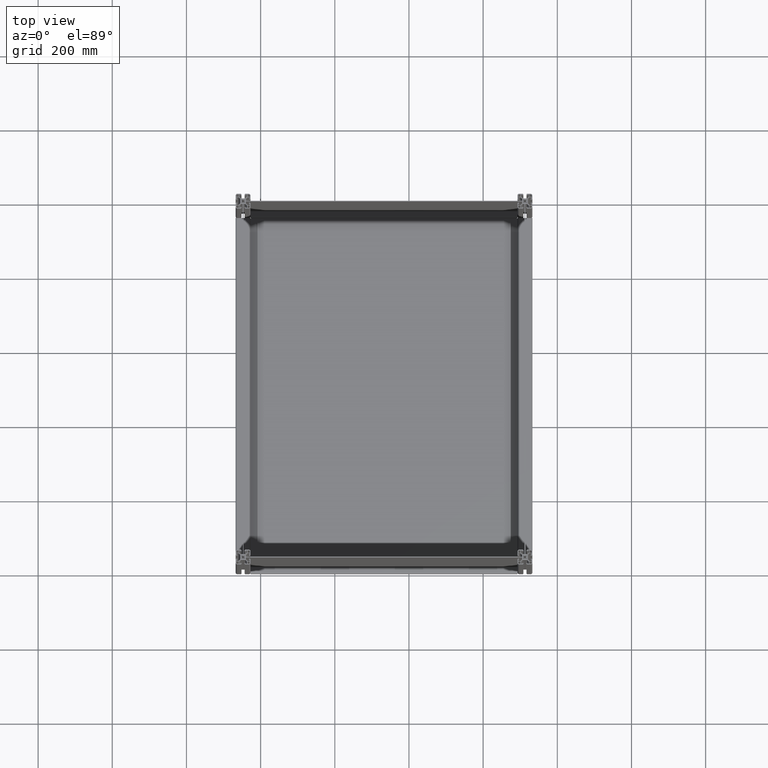
[diagram: clean part render]
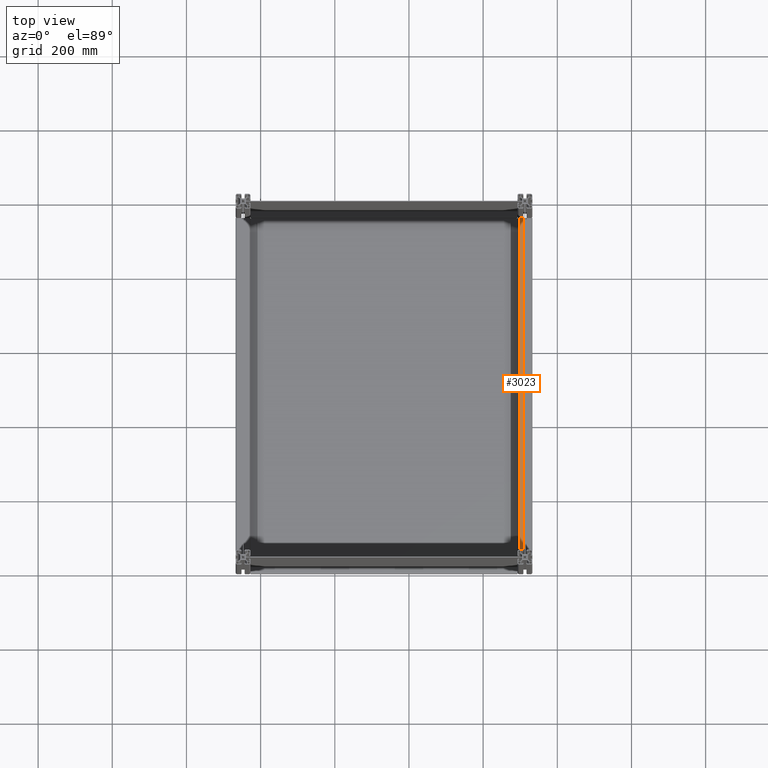
[diagram: same view with one face highlighted and labeled with its STEP entity id]
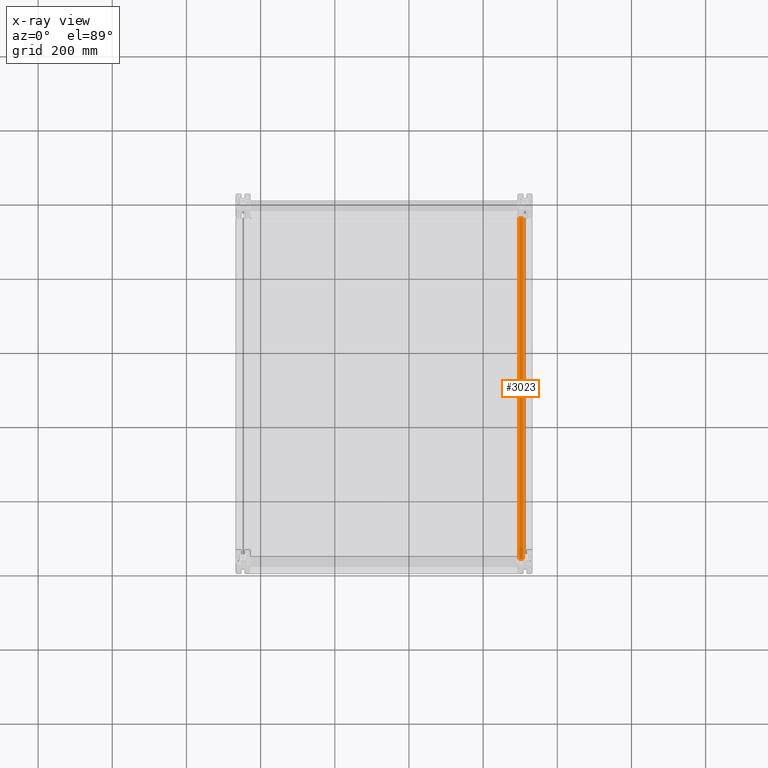
[diagram: x-ray of the same camera — body ghosted, the highlighted face saturated]
A machine part, top view. The second image highlights one B-rep face of the part: STEP entity #3023.
The next image is the same camera in x-ray: the body ghosted, the highlighted face saturated — about 3% of this face is hidden behind the body in this view.
In plain terms, the highlighted planar face has unit normal (0, 0, -1).
Its self-contained STEP definition (entity closure, byte-faithful):
#423 = VERTEX_POINT ( 'NONE', #2056 ) ;
#459 = DIRECTION ( 'NONE',  ( 0.000000000000000000, -1.000000000000000000, 0.000000000000000000 ) ) ;
#813 = DIRECTION ( 'NONE',  ( -1.000000000000000000, 3.336006684569905494E-16, 0.000000000000000000 ) ) ;
#1848 = LINE ( 'NONE', #9183, #12792 ) ;
#2038 = CARTESIAN_POINT ( 'NONE',  ( -5.100000000000360245, 20.00000000000180123, 800.0000000000000000 ) ) ;
#2056 = CARTESIAN_POINT ( 'NONE',  ( -5.100000000000360245, 20.00000000000180123, -320.0000000000000000 ) ) ;
#2586 = FACE_OUTER_BOUND ( 'NONE', #16204, .T. ) ;
#2895 = LINE ( 'NONE', #15106, #3243 ) ;
#3023 = ADVANCED_FACE ( 'NONE', ( #2586 ), #5708, .F. ) ;
#3096 = AXIS2_PLACEMENT_3D ( 'NONE', #15078, #459, #7089 ) ;
#3243 = VECTOR ( 'NONE', #9007, 1000.000000000000000 ) ;
#3580 = EDGE_CURVE ( 'NONE', #11357, #423, #2895, .T. ) ;
#3891 = CARTESIAN_POINT ( 'NONE',  ( -15.50000000000309974, 20.00000000000183675, -320.0000000000000000 ) ) ;
#4741 = VECTOR ( 'NONE', #7076, 1000.000000000000000 ) ;
#5708 = PLANE ( 'NONE',  #3096 ) ;
#5956 = ORIENTED_EDGE ( 'NONE', *, *, #3580, .F. ) ;
#5968 = VERTEX_POINT ( 'NONE', #9990 ) ;
#6337 = LINE ( 'NONE', #8080, #11866 ) ;
#7076 = DIRECTION ( 'NONE',  ( 0.000000000000000000, 0.000000000000000000, 1.000000000000000000 ) ) ;
#7089 = DIRECTION ( 'NONE',  ( 0.000000000000000000, 0.000000000000000000, -1.000000000000000000 ) ) ;
#7390 = CARTESIAN_POINT ( 'NONE',  ( -5.100000000000360245, 20.00000000000180123, 600.0000000000000000 ) ) ;
#8080 = CARTESIAN_POINT ( 'NONE',  ( -5.100000000000360245, 20.00000000000180123, 600.0000000000000000 ) ) ;
#9007 = DIRECTION ( 'NONE',  ( 1.000000000000000000, -2.335204679198932761E-15, 0.000000000000000000 ) ) ;
#9183 = CARTESIAN_POINT ( 'NONE',  ( -15.50000000000309974, 20.00000000000180123, 800.0000000000000000 ) ) ;
#9990 = CARTESIAN_POINT ( 'NONE',  ( -15.50000000000309974, 20.00000000000180123, 600.0000000000000000 ) ) ;
#11042 = ORIENTED_EDGE ( 'NONE', *, *, #16408, .F. ) ;
#11357 = VERTEX_POINT ( 'NONE', #3891 ) ;
#11866 = VECTOR ( 'NONE', #813, 1000.000000000000000 ) ;
#12451 = EDGE_CURVE ( 'NONE', #423, #13695, #16207, .T. ) ;
#12792 = VECTOR ( 'NONE', #13361, 1000.000000000000000 ) ;
#13361 = DIRECTION ( 'NONE',  ( 0.000000000000000000, 0.000000000000000000, -1.000000000000000000 ) ) ;
#13695 = VERTEX_POINT ( 'NONE', #7390 ) ;
#13844 = ORIENTED_EDGE ( 'NONE', *, *, #16075, .F. ) ;
#14187 = ORIENTED_EDGE ( 'NONE', *, *, #12451, .F. ) ;
#15078 = CARTESIAN_POINT ( 'NONE',  ( -5.100000000000360245, 20.00000000000180123, 800.0000000000000000 ) ) ;
#15106 = CARTESIAN_POINT ( 'NONE',  ( -15.50000000000309974, 20.00000000000182609, -320.0000000000000000 ) ) ;
#16075 = EDGE_CURVE ( 'NONE', #13695, #5968, #6337, .T. ) ;
#16204 = EDGE_LOOP ( 'NONE', ( #13844, #14187, #5956, #11042 ) ) ;
#16207 = LINE ( 'NONE', #2038, #4741 ) ;
#16408 = EDGE_CURVE ( 'NONE', #5968, #11357, #1848, .T. ) ;